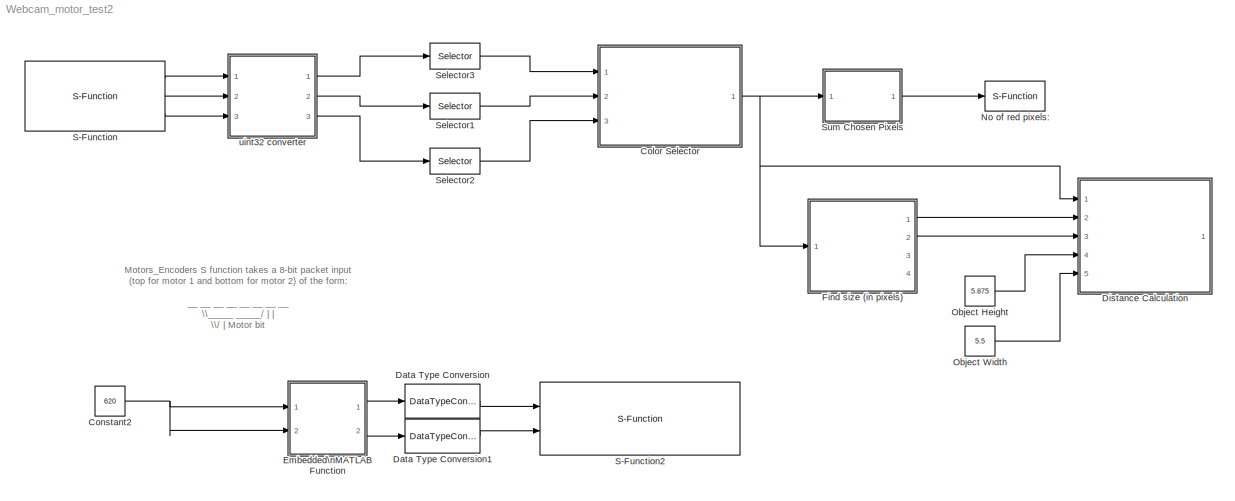
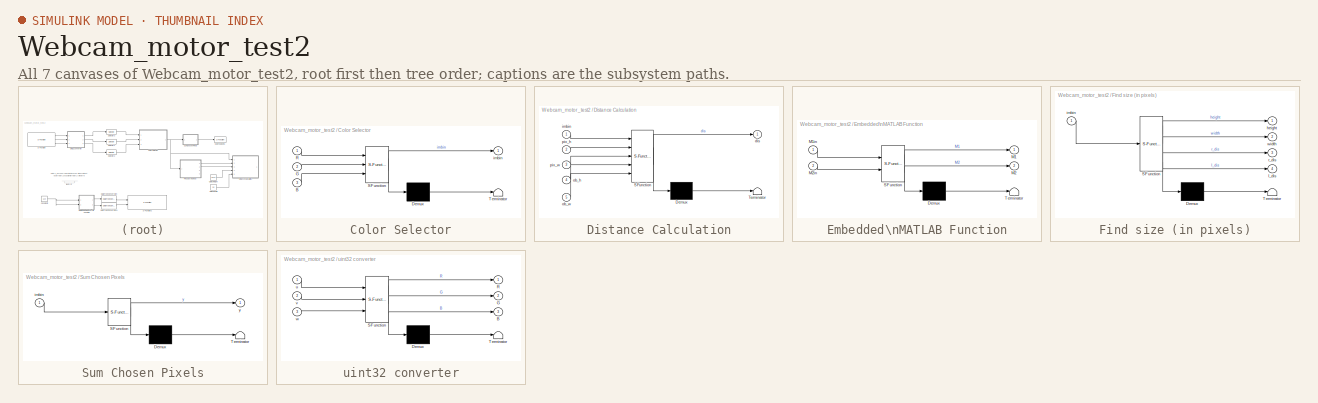
[diagram: thumbnail index - all 7 canvases of the model, root first then tree order]
MODEL Webcam_motor_test2
KIND model
BLOCK [SubSystem] Color Selector
  ErrorFcn = Stateflow.Translate.translate
  FunctionWithSeparateData = off
  MaskDescription = Embedded MATLAB block
  MaskDisplay = bgColor = Simulink.Root.ColorString2Rgb(get_param(gcbh, 'BackgroundColor')); image(imread('private/eml_membrane_16.png','png','BackgroundColor',bgColor(1:3)),'center'); disp([10 10 'color_selection']);
  MaskHideContents = off
  MaskIconFrame = on
  MaskIconOpaque = off
  MaskIconRotate = none
  MaskIconUnits = normalized
  MaskPortRotate = default
  MaskSelfModifiable = on
  MaskType = Stateflow
  MinAlgLoopOccurrences = off
  Opaque = off
  PermitHierarchicalResolution = ExplicitOnly
  Ports = [3, 1]
  PropExecContextOutsideSubsystem = off
  RTWSystemCode = Auto
  RequestExecContextInheritance = off
  SFBlockType = MATLAB Function
  SID = 1
  TreatAsAtomicUnit = on
BLOCK [Demux] Color Selector/ Demux 
  Outputs = 1
  Ports = [1, 1]
  SID = 1::9
BLOCK [S-Function] Color Selector/ SFunction 
  EnableBusSupport = on
  FunctionName = sf_sfun
  PortCounts = [3 2]
  Ports = [3, 2]
  SID = 1::8
  Tag = Stateflow S-Function Webcam_motor_test2 3
BLOCK [Terminator] Color Selector/ Terminator 
  SID = 1::11
BLOCK [Inport] Color Selector/B
  IconDisplay = Port number
  Port = 3
  SID = 1::3
BLOCK [Inport] Color Selector/G
  IconDisplay = Port number
  Port = 2
  SID = 1::2
BLOCK [Inport] Color Selector/R
  IconDisplay = Port number
  SID = 1::1
BLOCK [Outport] Color Selector/imbin
  IconDisplay = Port number
  SID = 1::7
BLOCK [Constant] Constant2
  SID = 2
  Value = 620
BLOCK [DataTypeConversion] Data Type Conversion
  OutDataTypeStr = uint8
  RndMeth = Floor
  SID = 3
  SaturateOnIntegerOverflow = off
BLOCK [DataTypeConversion] Data Type Conversion1
  OutDataTypeStr = uint8
  RndMeth = Floor
  SID = 4
  SaturateOnIntegerOverflow = off
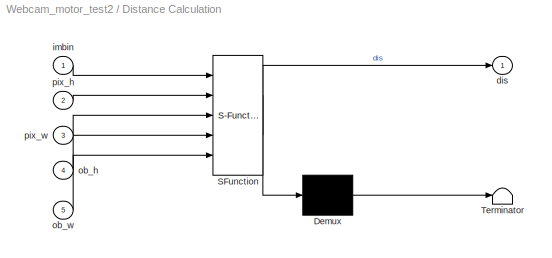
BLOCK [SubSystem] Distance Calculation
  ErrorFcn = Stateflow.Translate.translate
  FunctionWithSeparateData = off
  MaskDescription = Embedded MATLAB block
  MaskDisplay = bgColor = Simulink.Root.ColorString2Rgb(get_param(gcbh, 'BackgroundColor')); image(imread('private/eml_membrane_16.png','png','BackgroundColor',bgColor(1:3)),'center'); disp([10 10 'find_dis']);
  MaskHideContents = off
  MaskIconFrame = on
  MaskIconOpaque = off
  MaskIconRotate = none
  MaskIconUnits = normalized
  MaskPortRotate = default
  MaskSelfModifiable = on
  MaskType = Stateflow
  MinAlgLoopOccurrences = off
  Opaque = off
  PermitHierarchicalResolution = ExplicitOnly
  Ports = [5, 1]
  PropExecContextOutsideSubsystem = off
  RTWSystemCode = Auto
  RequestExecContextInheritance = off
  SFBlockType = MATLAB Function
  SID = 5
  TreatAsAtomicUnit = on
BLOCK [Demux] Distance Calculation/ Demux 
  Outputs = 1
  Ports = [1, 1]
  SID = 5::11
BLOCK [S-Function] Distance Calculation/ SFunction 
  EnableBusSupport = on
  FunctionName = sf_sfun
  PortCounts = [5 2]
  Ports = [5, 2]
  SID = 5::10
  Tag = Stateflow S-Function Webcam_motor_test2 6
BLOCK [Terminator] Distance Calculation/ Terminator 
  SID = 5::13
BLOCK [Outport] Distance Calculation/dis
  IconDisplay = Port number
  SID = 5::9
BLOCK [Inport] Distance Calculation/imbin
  IconDisplay = Port number
  SID = 5::1
BLOCK [Inport] Distance Calculation/ob_h
  IconDisplay = Port number
  Port = 4
  SID = 5::4
BLOCK [Inport] Distance Calculation/ob_w
  IconDisplay = Port number
  Port = 5
  SID = 5::5
BLOCK [Inport] Distance Calculation/pix_h
  IconDisplay = Port number
  Port = 2
  SID = 5::2
BLOCK [Inport] Distance Calculation/pix_w
  IconDisplay = Port number
  Port = 3
  SID = 5::3
BLOCK [SubSystem] Embedded\nMATLAB Function
  ErrorFcn = Stateflow.Translate.translate
  FunctionWithSeparateData = off
  MaskDescription = Embedded MATLAB block
  MaskDisplay = bgColor = Simulink.Root.ColorString2Rgb(get_param(gcbh, 'BackgroundColor')); image(imread('private/eml_membrane_16.png','png','BackgroundColor',bgColor(1:3)),'center'); disp([10 10 'MotorPackets']);
  MaskHideContents = off
  MaskIconFrame = on
  MaskIconOpaque = off
  MaskIconRotate = none
  MaskIconUnits = normalized
  MaskPortRotate = default
  MaskSelfModifiable = on
  MaskType = Stateflow
  MinAlgLoopOccurrences = off
  Opaque = off
  PermitHierarchicalResolution = ExplicitOnly
  Ports = [2, 2]
  PropExecContextOutsideSubsystem = off
  RTWSystemCode = Auto
  RequestExecContextInheritance = off
  SFBlockType = MATLAB Function
  SID = 6
  TreatAsAtomicUnit = on
BLOCK [Demux] Embedded\nMATLAB Function/ Demux 
  Outputs = 1
  Ports = [1, 1]
  SID = 6::9
BLOCK [S-Function] Embedded\nMATLAB Function/ SFunction 
  EnableBusSupport = on
  FunctionName = sf_sfun
  PortCounts = [2 3]
  Ports = [2, 3]
  SID = 6::8
  Tag = Stateflow S-Function Webcam_motor_test2 5
BLOCK [Terminator] Embedded\nMATLAB Function/ Terminator 
  SID = 6::11
BLOCK [Outport] Embedded\nMATLAB Function/M1
  IconDisplay = Port number
  SID = 6::6
BLOCK [Inport] Embedded\nMATLAB Function/M1in
  IconDisplay = Port number
  SID = 6::1
BLOCK [Outport] Embedded\nMATLAB Function/M2
  IconDisplay = Port number
  Port = 2
  SID = 6::7
BLOCK [Inport] Embedded\nMATLAB Function/M2in
  IconDisplay = Port number
  Port = 2
  SID = 6::2
BLOCK [SubSystem] Find size (in pixels)
  ErrorFcn = Stateflow.Translate.translate
  FunctionWithSeparateData = off
  MaskDescription = Embedded MATLAB block
  MaskDisplay = bgColor = Simulink.Root.ColorString2Rgb(get_param(gcbh, 'BackgroundColor')); image(imread('private/eml_membrane_16.png','png','BackgroundColor',bgColor(1:3)),'center'); disp([10 10 'hw_find']);
  MaskHideContents = off
  MaskIconFrame = on
  MaskIconOpaque = off
  MaskIconRotate = none
  MaskIconUnits = normalized
  MaskPortRotate = default
  MaskSelfModifiable = on
  MaskType = Stateflow
  MinAlgLoopOccurrences = off
  Opaque = off
  PermitHierarchicalResolution = ExplicitOnly
  Ports = [1, 4]
  PropExecContextOutsideSubsystem = off
  RTWSystemCode = Auto
  RequestExecContextInheritance = off
  SFBlockType = MATLAB Function
  SID = 7
  TreatAsAtomicUnit = on
BLOCK [Demux] Find size (in pixels)/ Demux 
  Outputs = 1
  Ports = [1, 1]
  SID = 7::10
BLOCK [S-Function] Find size (in pixels)/ SFunction 
  EnableBusSupport = on
  FunctionName = sf_sfun
  PortCounts = [1 5]
  Ports = [1, 5]
  SID = 7::9
  Tag = Stateflow S-Function Webcam_motor_test2 4
BLOCK [Terminator] Find size (in pixels)/ Terminator 
  SID = 7::12
BLOCK [Outport] Find size (in pixels)/height
  IconDisplay = Port number
  SID = 7::5
BLOCK [Inport] Find size (in pixels)/imbin
  IconDisplay = Port number
  SID = 7::1
BLOCK [Outport] Find size (in pixels)/l_dis
  IconDisplay = Port number
  Port = 4
  SID = 7::8
BLOCK [Outport] Find size (in pixels)/r_dis
  IconDisplay = Port number
  Port = 3
  SID = 7::7
BLOCK [Outport] Find size (in pixels)/width
  IconDisplay = Port number
  Port = 2
  SID = 7::6
BLOCK [S-Function] No of red pixels:
  EnableBusSupport = off
  FunctionName = printOut
  Ports = [1]
  SID = 11
BLOCK [Constant] Object Height
  SID = 8
  Value = 5.875
BLOCK [Constant] Object Width
  SID = 9
  Value = 5.5
BLOCK [S-Function] S-Function
  EnableBusSupport = off
  FunctionName = WebcamTest
  Ports = [0, 3]
  SID = 10
BLOCK [S-Function] S-Function2
  EnableBusSupport = off
  FunctionName = Motors_Only_Boat2
  Ports = [2]
  SID = 12
BLOCK [Selector] Selector1
  IndexOptions = Starting index (dialog),Starting index (dialog)
  Indices = 70,1
  InputPortWidth = 3
  NumberOfDimensions = 2
  OutputSizes = 340,640
  Ports = [1, 1]
  SID = 13
BLOCK [Selector] Selector2
  IndexOptions = Starting index (dialog),Starting index (dialog)
  Indices = 70,1
  InputPortWidth = 3
  NumberOfDimensions = 2
  OutputSizes = 340,640
  Ports = [1, 1]
  SID = 14
BLOCK [Selector] Selector3
  IndexOptions = Starting index (dialog),Starting index (dialog)
  Indices = 70,1
  InputPortWidth = 3
  NumberOfDimensions = 2
  OutputSizes = 340,640
  Ports = [1, 1]
  SID = 15
BLOCK [SubSystem] Sum Chosen Pixels
  ErrorFcn = Stateflow.Translate.translate
  FunctionWithSeparateData = off
  MaskDescription = Embedded MATLAB block
  MaskDisplay = bgColor = Simulink.Root.ColorString2Rgb(get_param(gcbh, 'BackgroundColor')); image(imread('private/eml_membrane_16.png','png','BackgroundColor',bgColor(1:3)),'center'); disp([10 10 'fcn']);
  MaskHideContents = off
  MaskIconFrame = on
  MaskIconOpaque = off
  MaskIconRotate = none
  MaskIconUnits = normalized
  MaskPortRotate = default
  MaskSelfModifiable = on
  MaskType = Stateflow
  MinAlgLoopOccurrences = off
  Opaque = off
  PermitHierarchicalResolution = ExplicitOnly
  Ports = [1, 1]
  PropExecContextOutsideSubsystem = off
  RTWSystemCode = Auto
  RequestExecContextInheritance = off
  SFBlockType = MATLAB Function
  SID = 16
  TreatAsAtomicUnit = on
BLOCK [Demux] Sum Chosen Pixels/ Demux 
  Outputs = 1
  Ports = [1, 1]
  SID = 16::7
BLOCK [S-Function] Sum Chosen Pixels/ SFunction 
  EnableBusSupport = on
  FunctionName = sf_sfun
  PortCounts = [1 2]
  Ports = [1, 2]
  SID = 16::6
  Tag = Stateflow S-Function Webcam_motor_test2 2
BLOCK [Terminator] Sum Chosen Pixels/ Terminator 
  SID = 16::9
BLOCK [Inport] Sum Chosen Pixels/imbin
  IconDisplay = Port number
  SID = 16::1
BLOCK [Outport] Sum Chosen Pixels/y
  IconDisplay = Port number
  SID = 16::5
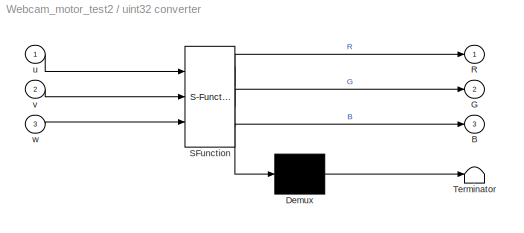
BLOCK [SubSystem] uint32 converter
  ErrorFcn = Stateflow.Translate.translate
  FunctionWithSeparateData = off
  MaskDescription = Embedded MATLAB block
  MaskDisplay = bgColor = Simulink.Root.ColorString2Rgb(get_param(gcbh, 'BackgroundColor')); image(imread('private/eml_membrane_16.png','png','BackgroundColor',bgColor(1:3)),'center'); disp([10 10 'fcn']);
  MaskHideContents = off
  MaskIconFrame = on
  MaskIconOpaque = off
  MaskIconRotate = none
  MaskIconUnits = normalized
  MaskPortRotate = default
  MaskSelfModifiable = on
  MaskType = Stateflow
  MinAlgLoopOccurrences = off
  Opaque = off
  PermitHierarchicalResolution = ExplicitOnly
  Ports = [3, 3]
  PropExecContextOutsideSubsystem = off
  RTWSystemCode = Auto
  RequestExecContextInheritance = off
  SFBlockType = MATLAB Function
  SID = 17
  TreatAsAtomicUnit = on
BLOCK [Demux] uint32 converter/ Demux 
  Outputs = 1
  Ports = [1, 1]
  SID = 17::11
BLOCK [S-Function] uint32 converter/ SFunction 
  EnableBusSupport = on
  FunctionName = sf_sfun
  PortCounts = [3 4]
  Ports = [3, 4]
  SID = 17::10
  Tag = Stateflow S-Function Webcam_motor_test2 1
BLOCK [Terminator] uint32 converter/ Terminator 
  SID = 17::13
BLOCK [Outport] uint32 converter/B
  IconDisplay = Port number
  Port = 3
  SID = 17::9
BLOCK [Outport] uint32 converter/G
  IconDisplay = Port number
  Port = 2
  SID = 17::8
BLOCK [Outport] uint32 converter/R
  IconDisplay = Port number
  SID = 17::7
BLOCK [Inport] uint32 converter/u
  IconDisplay = Port number
  SID = 17::1
BLOCK [Inport] uint32 converter/v
  IconDisplay = Port number
  Port = 2
  SID = 17::2
BLOCK [Inport] uint32 converter/w
  IconDisplay = Port number
  Port = 3
  SID = 17::3
ANNOTATION (root): Motors_Encoders S function takes a 8-bit packet input\n(top for motor 1 and bottom for motor 2) of the form:\n\n __ __ __ __ __ __ __ __ \n \\_____ _____/ | | \n \\/ | Motor bit \n Motor Speed | 0 - Motor1\n | 1 - Motor 2\n Direction Bit\n\nAnd sends it to the Arduino. The outputs are encoder clicks\nsince the last time step output as 8-bit signed chars.
LINE Color Selector/ Demux :1 -> Color Selector/ Terminator :1
LINE Color Selector/ SFunction :1 -> Color Selector/ Demux :1
LINE Color Selector/ SFunction :2 -> Color Selector/imbin:1
LINE Color Selector/B:1 -> Color Selector/ SFunction :3
LINE Color Selector/G:1 -> Color Selector/ SFunction :2
LINE Color Selector/R:1 -> Color Selector/ SFunction :1
NET Color Selector:1 -> Distance Calculation:1, Find size (in pixels):1, Sum Chosen Pixels:1
NET Constant2:1 -> Embedded\nMATLAB Function:1, Embedded\nMATLAB Function:2
LINE Data Type Conversion1:1 -> S-Function2:2
LINE Data Type Conversion:1 -> S-Function2:1
LINE Distance Calculation/ Demux :1 -> Distance Calculation/ Terminator :1
LINE Distance Calculation/ SFunction :1 -> Distance Calculation/ Demux :1
LINE Distance Calculation/ SFunction :2 -> Distance Calculation/dis:1
LINE Distance Calculation/imbin:1 -> Distance Calculation/ SFunction :1
LINE Distance Calculation/ob_h:1 -> Distance Calculation/ SFunction :4
LINE Distance Calculation/ob_w:1 -> Distance Calculation/ SFunction :5
LINE Distance Calculation/pix_h:1 -> Distance Calculation/ SFunction :2
LINE Distance Calculation/pix_w:1 -> Distance Calculation/ SFunction :3
LINE Embedded\nMATLAB Function/ Demux :1 -> Embedded\nMATLAB Function/ Terminator :1
LINE Embedded\nMATLAB Function/ SFunction :1 -> Embedded\nMATLAB Function/ Demux :1
LINE Embedded\nMATLAB Function/ SFunction :2 -> Embedded\nMATLAB Function/M1:1
LINE Embedded\nMATLAB Function/ SFunction :3 -> Embedded\nMATLAB Function/M2:1
LINE Embedded\nMATLAB Function/M1in:1 -> Embedded\nMATLAB Function/ SFunction :1
LINE Embedded\nMATLAB Function/M2in:1 -> Embedded\nMATLAB Function/ SFunction :2
LINE Embedded\nMATLAB Function:1 -> Data Type Conversion:1
LINE Embedded\nMATLAB Function:2 -> Data Type Conversion1:1
LINE Find size (in pixels)/ Demux :1 -> Find size (in pixels)/ Terminator :1
LINE Find size (in pixels)/ SFunction :1 -> Find size (in pixels)/ Demux :1
LINE Find size (in pixels)/ SFunction :2 -> Find size (in pixels)/height:1
LINE Find size (in pixels)/ SFunction :3 -> Find size (in pixels)/width:1
LINE Find size (in pixels)/ SFunction :4 -> Find size (in pixels)/r_dis:1
LINE Find size (in pixels)/ SFunction :5 -> Find size (in pixels)/l_dis:1
LINE Find size (in pixels)/imbin:1 -> Find size (in pixels)/ SFunction :1
LINE Find size (in pixels):1 -> Distance Calculation:2
LINE Find size (in pixels):2 -> Distance Calculation:3
LINE Object Height:1 -> Distance Calculation:4
LINE Object Width:1 -> Distance Calculation:5
LINE S-Function:1 -> uint32 converter:1
LINE S-Function:2 -> uint32 converter:2
LINE S-Function:3 -> uint32 converter:3
LINE Selector1:1 -> Color Selector:2
LINE Selector2:1 -> Color Selector:3
LINE Selector3:1 -> Color Selector:1
LINE Sum Chosen Pixels/ Demux :1 -> Sum Chosen Pixels/ Terminator :1
LINE Sum Chosen Pixels/ SFunction :1 -> Sum Chosen Pixels/ Demux :1
LINE Sum Chosen Pixels/ SFunction :2 -> Sum Chosen Pixels/y:1
LINE Sum Chosen Pixels/imbin:1 -> Sum Chosen Pixels/ SFunction :1
LINE Sum Chosen Pixels:1 -> No of red pixels::1
LINE uint32 converter/ Demux :1 -> uint32 converter/ Terminator :1
LINE uint32 converter/ SFunction :1 -> uint32 converter/ Demux :1
LINE uint32 converter/ SFunction :2 -> uint32 converter/R:1
LINE uint32 converter/ SFunction :3 -> uint32 converter/G:1
LINE uint32 converter/ SFunction :4 -> uint32 converter/B:1
LINE uint32 converter/u:1 -> uint32 converter/ SFunction :1
LINE uint32 converter/v:1 -> uint32 converter/ SFunction :2
LINE uint32 converter/w:1 -> uint32 converter/ SFunction :3
LINE uint32 converter:1 -> Selector3:1
LINE uint32 converter:2 -> Selector1:1
LINE uint32 converter:3 -> Selector2:1
note: NET lines group one-source signal fan-out (src -> all destinations, sorted); 1:1 wires keep LINE
CHART uint32 converter states=1 transitions=1
  STATE_LABEL 'eML_blk_kernel()'
CHART Sum Chosen Pixels states=1 transitions=1
  STATE_LABEL 'eML_blk_kernel()'
CHART Color Selector states=1 transitions=1
  STATE_LABEL 'eML_blk_kernel()'
CHART Find size (in pixels) states=1 transitions=1
  STATE_LABEL 'eML_blk_kernel()'
CHART Embedded\nMATLAB Function states=1 transitions=1
  STATE_LABEL 'eML_blk_kernel()'
CHART Distance Calculation states=1 transitions=1
  STATE_LABEL 'eML_blk_kernel()'
